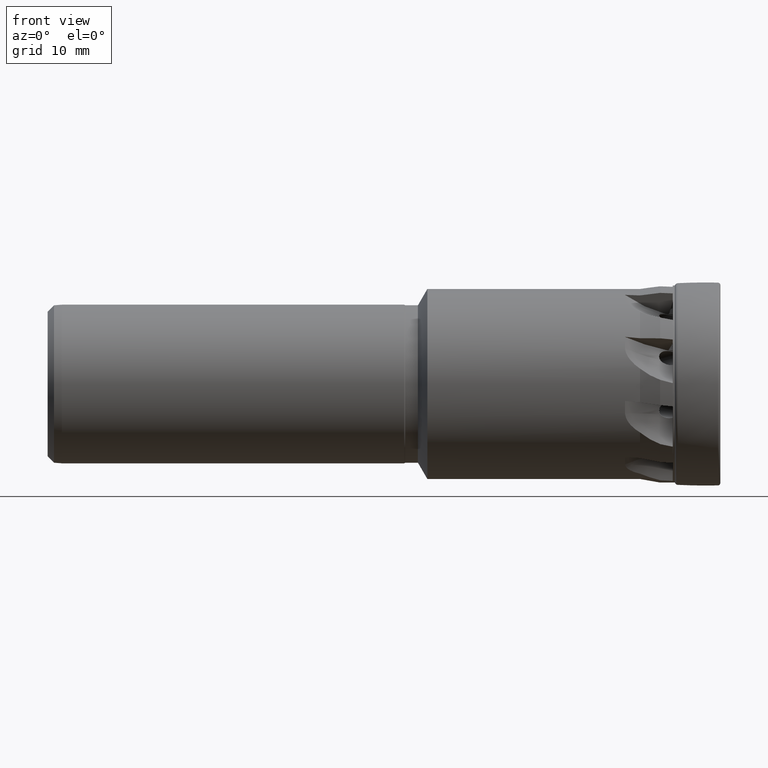
[diagram: clean part render]
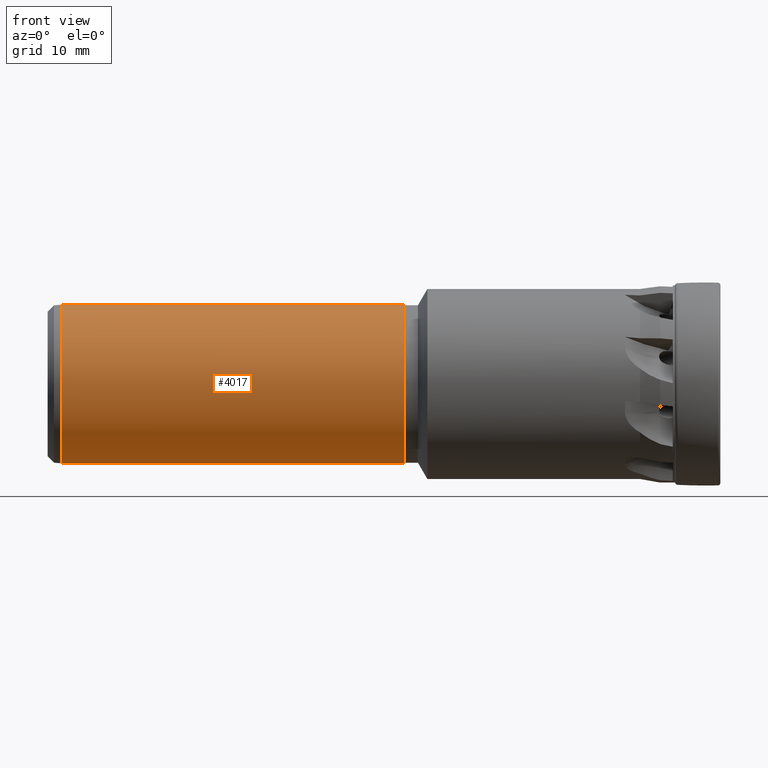
[diagram: same view with one face highlighted and labeled with its STEP entity id]
A machine part, front view. The second image highlights one B-rep face of the part: STEP entity #4017.
In plain terms, the highlighted cylindrical surface (partial cylindrical patch) has radius 12.5 mm, axis along (1, -0, -0).
Its self-contained STEP definition (entity closure, byte-faithful):
#183 = ORIENTED_EDGE ( 'NONE', *, *, #4297, .F. ) ;
#185 = ORIENTED_EDGE ( 'NONE', *, *, #4258, .T. ) ;
#187 = ORIENTED_EDGE ( 'NONE', *, *, #4250, .T. ) ;
#189 = ORIENTED_EDGE ( 'NONE', *, *, #3861, .T. ) ;
#703 = VERTEX_POINT ( 'NONE', #2322 ) ;
#961 = CARTESIAN_POINT ( 'NONE',  ( -49.32679491924309900, 0.0000000000000000000, 0.0000000000000000000 ) ) ;
#962 = DIRECTION ( 'NONE',  ( -1.000000000000000000, 0.0000000000000000000, 0.0000000000000000000 ) ) ;
#963 = DIRECTION ( 'NONE',  ( 0.0000000000000000000, 0.0000000000000000000, 1.000000000000000000 ) ) ;
#1263 = AXIS2_PLACEMENT_3D ( 'NONE', #4920, #4917, #4922 ) ;
#1275 = CIRCLE ( 'NONE', #1310, 12.49999999999999100 ) ;
#1310 = AXIS2_PLACEMENT_3D ( 'NONE', #961, #962, #963 ) ;
#2322 = CARTESIAN_POINT ( 'NONE',  ( -103.2499999999999700, 1.530808498934190100E-015, 12.49999999999999100 ) ) ;
#2417 = CARTESIAN_POINT ( 'NONE',  ( -103.2499999999999700, 0.0000000000000000000, -12.49999999999999100 ) ) ;
#2549 = VERTEX_POINT ( 'NONE', #2417 ) ;
#3025 = LINE ( 'NONE', #3026, #6518 ) ;
#3026 = CARTESIAN_POINT ( 'NONE',  ( 0.0000000000000000000, 0.0000000000000000000, -12.49999999999999100 ) ) ;
#3027 = DIRECTION ( 'NONE',  ( 1.000000000000000000, -0.0000000000000000000, -0.0000000000000000000 ) ) ;
#3060 = CARTESIAN_POINT ( 'NONE',  ( -103.2499999999999700, 0.0000000000000000000, 0.0000000000000000000 ) ) ;
#3061 = DIRECTION ( 'NONE',  ( 1.000000000000000000, -0.0000000000000000000, -0.0000000000000000000 ) ) ;
#3062 = DIRECTION ( 'NONE',  ( 0.0000000000000000000, 0.0000000000000000000, -1.000000000000000000 ) ) ;
#3258 = LINE ( 'NONE', #3259, #6559 ) ;
#3259 = CARTESIAN_POINT ( 'NONE',  ( 0.0000000000000000000, 1.530808498934190100E-015, 12.49999999999999100 ) ) ;
#3260 = DIRECTION ( 'NONE',  ( 1.000000000000000000, -0.0000000000000000000, -0.0000000000000000000 ) ) ;
#3666 = VERTEX_POINT ( 'NONE', #6695 ) ;
#3674 = VERTEX_POINT ( 'NONE', #6703 ) ;
#3861 = EDGE_CURVE ( 'NONE', #3666, #3674, #1275, .T. ) ;
#4017 = ADVANCED_FACE ( 'NONE', ( #4919 ), #4918, .T. ) ;
#4250 = EDGE_CURVE ( 'NONE', #2549, #3666, #3025, .T. ) ;
#4258 = EDGE_CURVE ( 'NONE', #703, #2549, #6507, .T. ) ;
#4297 = EDGE_CURVE ( 'NONE', #703, #3674, #3258, .T. ) ;
#4917 = DIRECTION ( 'NONE',  ( 1.000000000000000000, -0.0000000000000000000, -0.0000000000000000000 ) ) ;
#4918 = CYLINDRICAL_SURFACE ( 'NONE', #1263, 12.49999999999999100 ) ;
#4919 = FACE_OUTER_BOUND ( 'NONE', #7483, .T. ) ;
#4920 = CARTESIAN_POINT ( 'NONE',  ( 0.0000000000000000000, 0.0000000000000000000, 0.0000000000000000000 ) ) ;
#4922 = DIRECTION ( 'NONE',  ( 0.0000000000000000000, 0.0000000000000000000, -1.000000000000000000 ) ) ;
#6507 = CIRCLE ( 'NONE', #6527, 12.49999999999999100 ) ;
#6518 = VECTOR ( 'NONE', #3027, 1000.000000000000000 ) ;
#6527 = AXIS2_PLACEMENT_3D ( 'NONE', #3060, #3061, #3062 ) ;
#6559 = VECTOR ( 'NONE', #3260, 1000.000000000000000 ) ;
#6695 = CARTESIAN_POINT ( 'NONE',  ( -49.32679491924309900, 1.530808498934190100E-015, -12.49999999999999100 ) ) ;
#6703 = CARTESIAN_POINT ( 'NONE',  ( -49.32679491924309900, 0.0000000000000000000, 12.49999999999999100 ) ) ;
#7483 = EDGE_LOOP ( 'NONE', ( #183, #185, #187, #189 ) ) ;